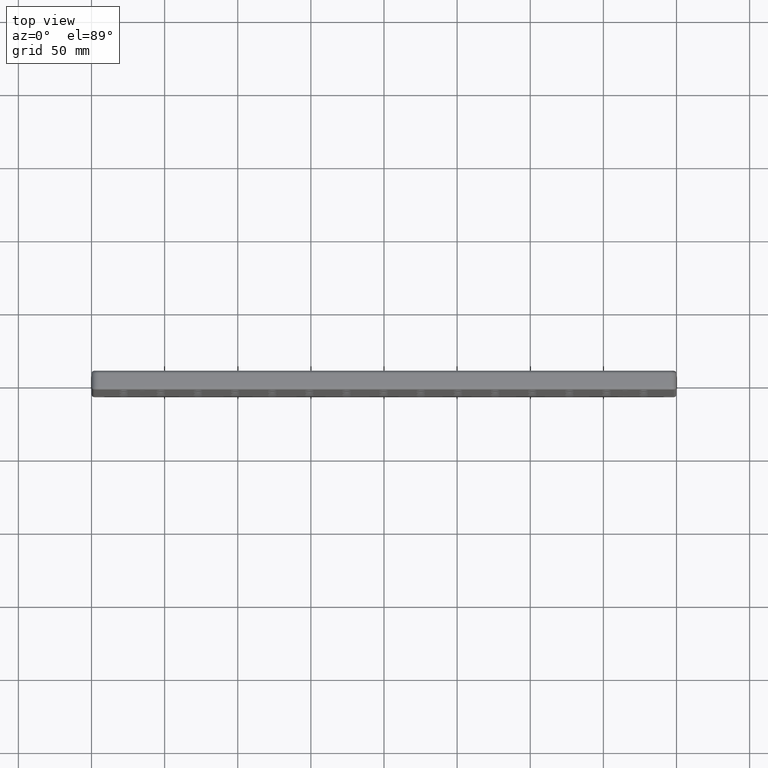
[diagram: clean part render]
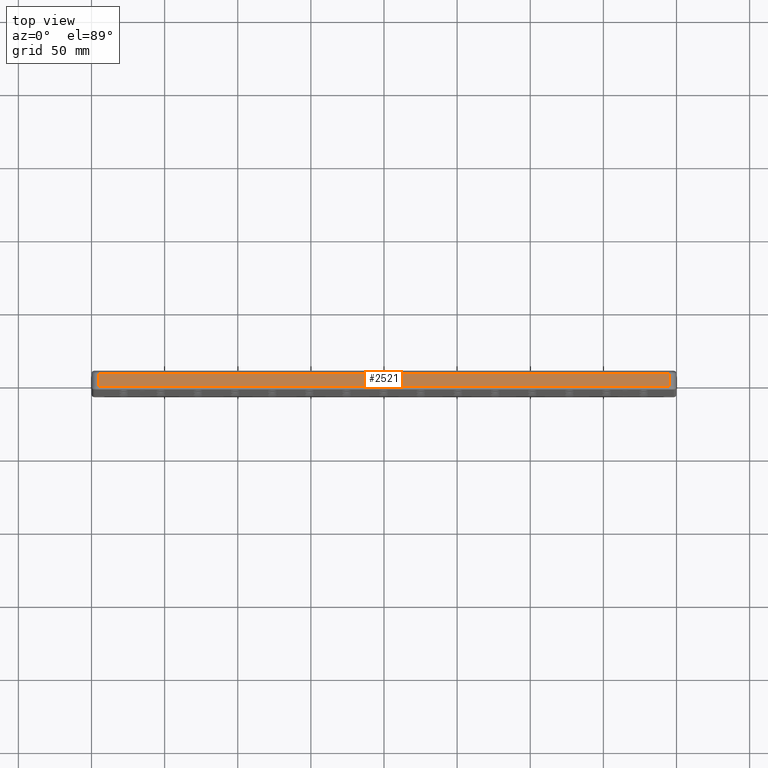
[diagram: same view with one face highlighted and labeled with its STEP entity id]
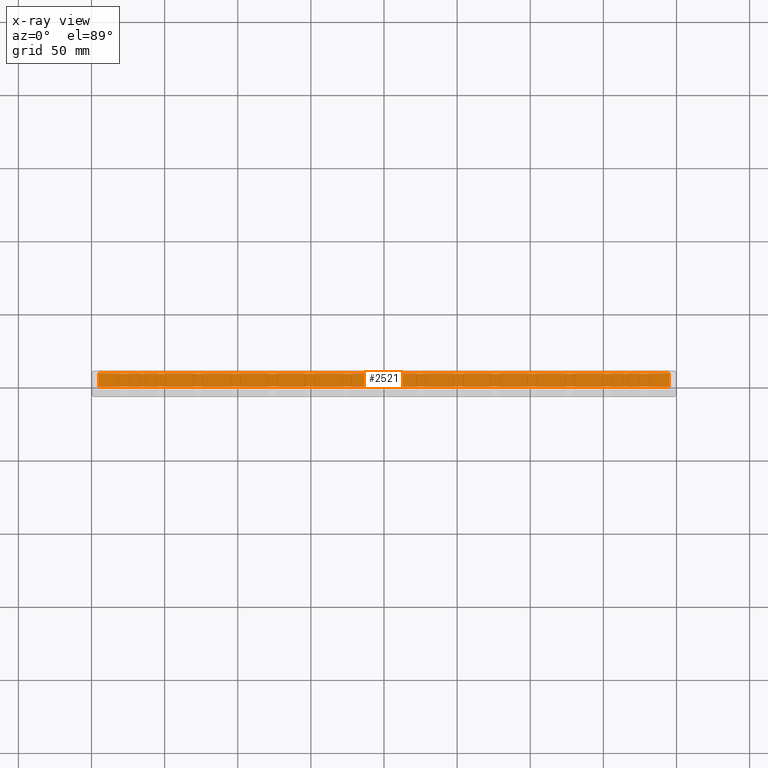
[diagram: x-ray of the same camera — body ghosted, the highlighted face saturated]
A machine part, top view. The second image highlights one B-rep face of the part: STEP entity #2521.
The next image is the same camera in x-ray: the body ghosted, the highlighted face saturated — about 0% of this face is hidden behind the body in this view.
In plain terms, the highlighted planar face has unit normal (0, 0, -1).
Its self-contained STEP definition (entity closure, byte-faithful):
#410 = EDGE_CURVE ( 'NONE', #10975, #13832, #4451, .T. ) ;
#426 = CARTESIAN_POINT ( 'NONE',  ( -195.0000000000000000, 6.500000000000000000, 150.0000000000000000 ) ) ;
#636 = CARTESIAN_POINT ( 'NONE',  ( -200.0000000000000000, 6.500000000000000000, 150.0000000000000000 ) ) ;
#1641 = VECTOR ( 'NONE', #12708, 1000.000000000000000 ) ;
#1799 = CARTESIAN_POINT ( 'NONE',  ( -195.0000000000000000, -4.500000000000000000, 150.0000000000000000 ) ) ;
#1907 = EDGE_CURVE ( 'NONE', #13832, #2610, #4131, .T. ) ;
#1944 = DIRECTION ( 'NONE',  ( -0.0000000000000000000, 1.000000000000000000, -0.0000000000000000000 ) ) ;
#2521 = ADVANCED_FACE ( 'NONE', ( #2963 ), #9134, .F. ) ;
#2610 = VERTEX_POINT ( 'NONE', #1799 ) ;
#2963 = FACE_OUTER_BOUND ( 'NONE', #4820, .T. ) ;
#3772 = DIRECTION ( 'NONE',  ( 0.0000000000000000000, 0.0000000000000000000, -1.000000000000000000 ) ) ;
#3839 = CARTESIAN_POINT ( 'NONE',  ( -200.0000000000000000, 4.500000000000000000, 150.0000000000000000 ) ) ;
#4131 = LINE ( 'NONE', #426, #5984 ) ;
#4451 = LINE ( 'NONE', #3839, #1641 ) ;
#4820 = EDGE_LOOP ( 'NONE', ( #6419, #9099, #8881, #5583 ) ) ;
#5180 = AXIS2_PLACEMENT_3D ( 'NONE', #636, #3772, #8097 ) ;
#5457 = CARTESIAN_POINT ( 'NONE',  ( -195.0000000000000000, 4.500000000000000000, 150.0000000000000000 ) ) ;
#5583 = ORIENTED_EDGE ( 'NONE', *, *, #410, .T. ) ;
#5984 = VECTOR ( 'NONE', #10038, 1000.000000000000000 ) ;
#5999 = EDGE_CURVE ( 'NONE', #2610, #13154, #13304, .T. ) ;
#6419 = ORIENTED_EDGE ( 'NONE', *, *, #1907, .T. ) ;
#7202 = CARTESIAN_POINT ( 'NONE',  ( 195.0000000000000000, 6.500000000000000000, 150.0000000000000000 ) ) ;
#7210 = EDGE_CURVE ( 'NONE', #13154, #10975, #7525, .T. ) ;
#7525 = LINE ( 'NONE', #7202, #9220 ) ;
#8097 = DIRECTION ( 'NONE',  ( -1.000000000000000000, 0.0000000000000000000, -0.0000000000000000000 ) ) ;
#8881 = ORIENTED_EDGE ( 'NONE', *, *, #7210, .T. ) ;
#9099 = ORIENTED_EDGE ( 'NONE', *, *, #5999, .T. ) ;
#9134 = PLANE ( 'NONE',  #5180 ) ;
#9220 = VECTOR ( 'NONE', #1944, 1000.000000000000000 ) ;
#9286 = CARTESIAN_POINT ( 'NONE',  ( 195.0000000000000000, -4.500000000000000000, 150.0000000000000000 ) ) ;
#9463 = CARTESIAN_POINT ( 'NONE',  ( 195.0000000000000000, 4.500000000000000000, 150.0000000000000000 ) ) ;
#10038 = DIRECTION ( 'NONE',  ( 0.0000000000000000000, -1.000000000000000000, 0.0000000000000000000 ) ) ;
#10090 = VECTOR ( 'NONE', #12237, 1000.000000000000000 ) ;
#10975 = VERTEX_POINT ( 'NONE', #9463 ) ;
#12014 = CARTESIAN_POINT ( 'NONE',  ( 195.0000000000000000, -4.500000000000000000, 150.0000000000000000 ) ) ;
#12237 = DIRECTION ( 'NONE',  ( 1.000000000000000000, 0.0000000000000000000, 0.0000000000000000000 ) ) ;
#12708 = DIRECTION ( 'NONE',  ( -1.000000000000000000, -0.0000000000000000000, -0.0000000000000000000 ) ) ;
#13154 = VERTEX_POINT ( 'NONE', #9286 ) ;
#13304 = LINE ( 'NONE', #12014, #10090 ) ;
#13832 = VERTEX_POINT ( 'NONE', #5457 ) ;